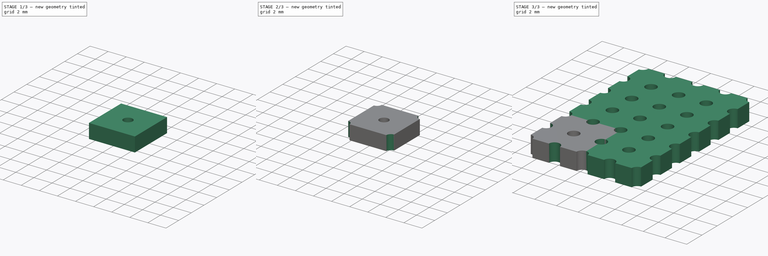
[diagram: build sequence overview — one tinted view per stage of 3, left to right]
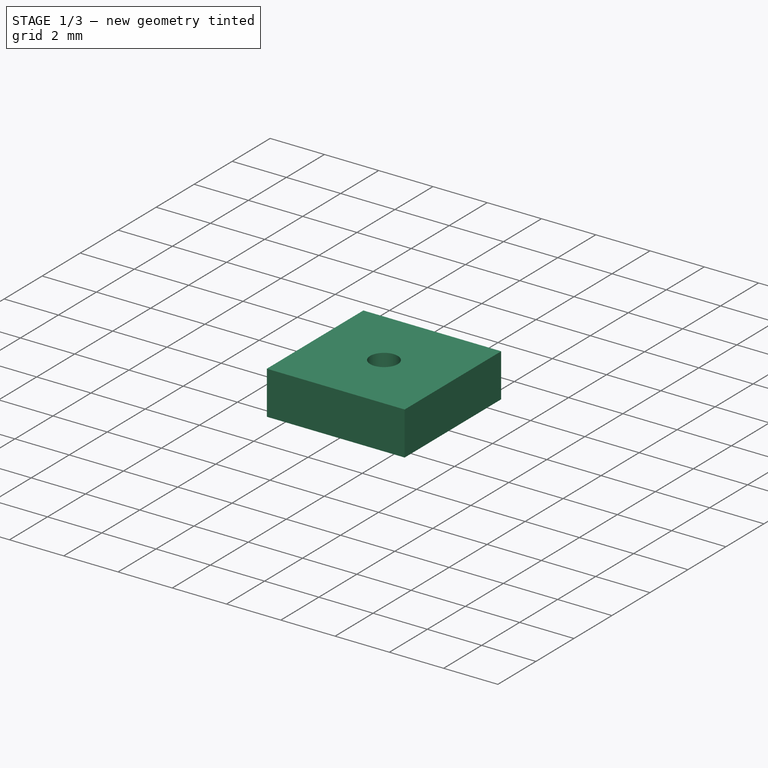
[diagram: stage 1 of 3 — iso view after this stage's code; geometry added in this stage tinted green]
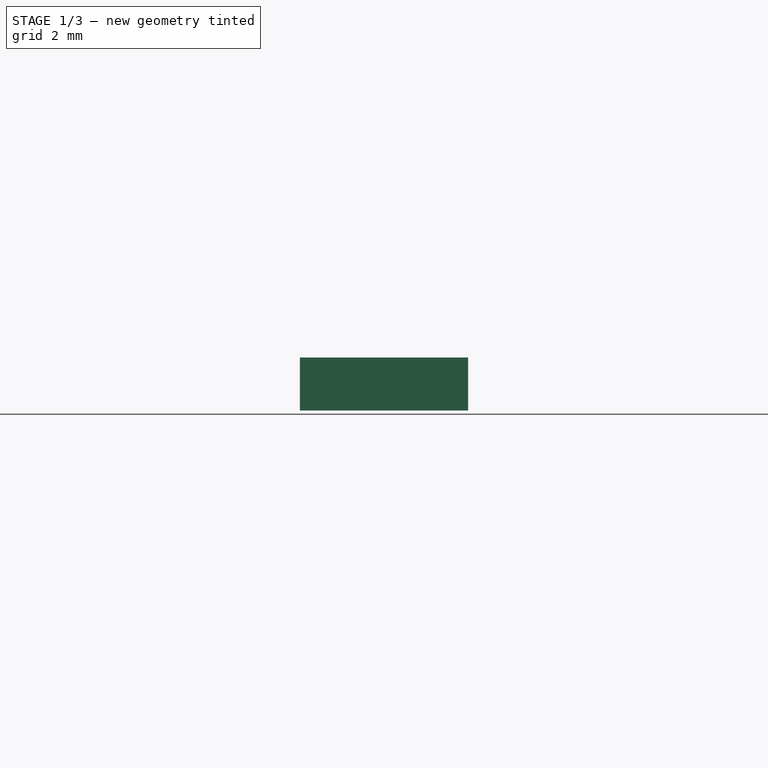
[diagram: stage 1 of 3 — front view after this stage's code; geometry added in this stage tinted green]
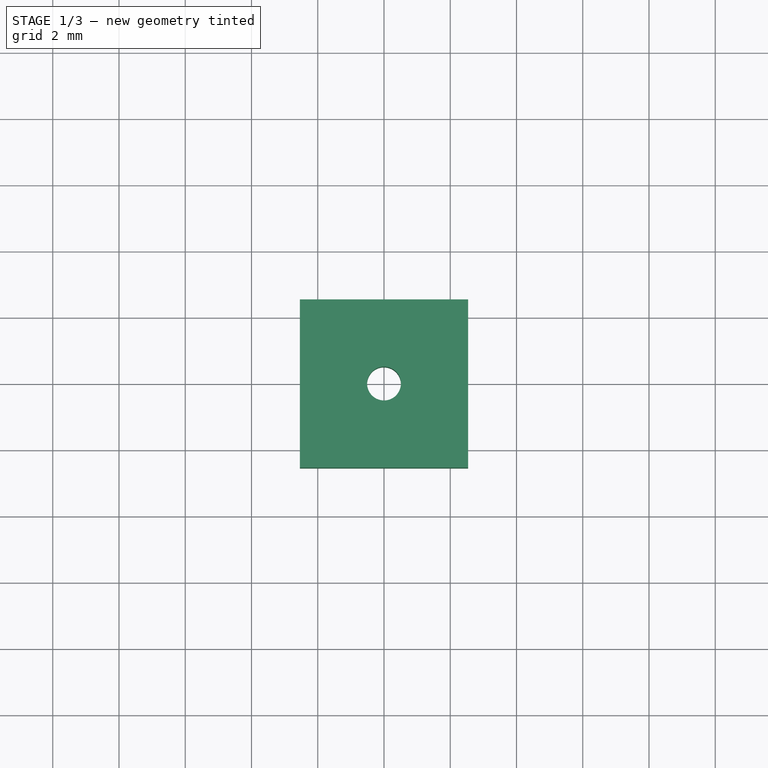
[diagram: stage 1 of 3 — top view after this stage's code; geometry added in this stage tinted green]
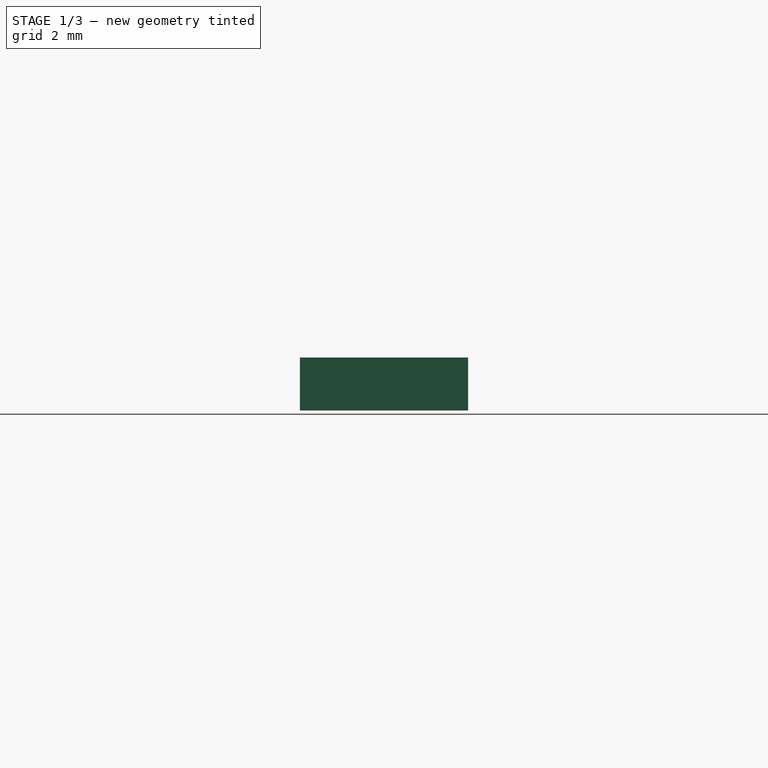
[diagram: stage 1 of 3 — right view after this stage's code; geometry added in this stage tinted green]
FCSTD DOCUMENT  (FreeCAD 0.19R16945 (Git))
Label: Vero Board Generator ReDesigned
License: All rights reserved
LicenseURL: http://en.wikipedia.org/wiki/All_rights_reserved
objects: Sketcher::SketchObject×4, PartDesign::Pocket×3, PartDesign::Pad×1, PartDesign::Body×1, Part::FeaturePython×1
note: 14 computed .brp shape members not serialized (recipe doc carries the construction recipe); baked Part::Feature solids carry a one-line shape summary decoded from their .brp

FEATURE [Sketcher::SketchObject] Sketch  label="SketchMain"
  MapMode = 5
  Support = -> [XY_Plane]
  expr: Constraints[10] = 2 * 2.54
  sketch-geometry (4):
    g0: LineSegment StartX=-2.54 StartY=2.54 StartZ=0 EndX=2.54 EndY=2.54 EndZ=0
    g1: LineSegment StartX=2.54 StartY=2.54 StartZ=0 EndX=2.54 EndY=-2.54 EndZ=0
    g2: LineSegment StartX=2.54 StartY=-2.54 StartZ=0 EndX=-2.54 EndY=-2.54 EndZ=0
    g3: LineSegment StartX=-2.54 StartY=-2.54 StartZ=0 EndX=-2.54 EndY=2.54 EndZ=0
  constraints (11):
    c: Coincident(g0,g1)
    c: Coincident(g1,g2)
    c: Coincident(g2,g3)
    c: Coincident(g3,g0)
    c: Horizontal(g0)
    c: Horizontal(g2)
    c: Vertical(g1)
    c: Vertical(g3)
    c: Symmetric(g0,g2,g-1)
    c: Equal(g0,g3)
    c: DistanceX(g0,g0) = 5.08
FEATURE [PartDesign::Pad] Pad  label="PadMain"
  Length = 1.6
  Length2 = 100
  Profile = -> Sketch
  Type = 0
FEATURE [Sketcher::SketchObject] Sketch001  label="SketchMiddle"
  MapMode = 5
  Support = -> [XY_Plane]
  expr: Constraints[10] = SketchMain.Constraints[10]
  sketch-geometry (5):
    g0: LineSegment [constr] StartX=-2.54 StartY=2.54 StartZ=0 EndX=2.54 EndY=2.54 EndZ=0
    g1: LineSegment [constr] StartX=2.54 StartY=2.54 StartZ=0 EndX=2.54 EndY=-2.54 EndZ=0
    g2: LineSegment [constr] StartX=2.54 StartY=-2.54 StartZ=0 EndX=-2.54 EndY=-2.54 EndZ=0
    g3: LineSegment [constr] StartX=-2.54 StartY=-2.54 StartZ=0 EndX=-2.54 EndY=2.54 EndZ=0
    g4: Circle CenterX=0 CenterY=0 CenterZ=0 NormalX=0 NormalY=0 NormalZ=1 AngleXU=0 Radius=0.51
  constraints (13):
    c: Coincident(g0,g1)
    c: Coincident(g1,g2)
    c: Coincident(g2,g3)
    c: Coincident(g3,g0)
    c: Horizontal(g0)
    c: Horizontal(g2)
    c: Vertical(g1)
    c: Vertical(g3)
    c: Symmetric(g0,g2,g-1)
    c: Equal(g0,g3)
    c: DistanceX(g0,g0) = 5.08
    c: Coincident(g4,g-1)
    c: Radius(g4) = 0.51
FEATURE [PartDesign::Pocket] Pocket  label="PocketMiddle"
  BaseFeature = -> Pad
  Length = 5
  Length2 = 100
  Midplane = true
  Profile = -> Sketch001
  Type = 1
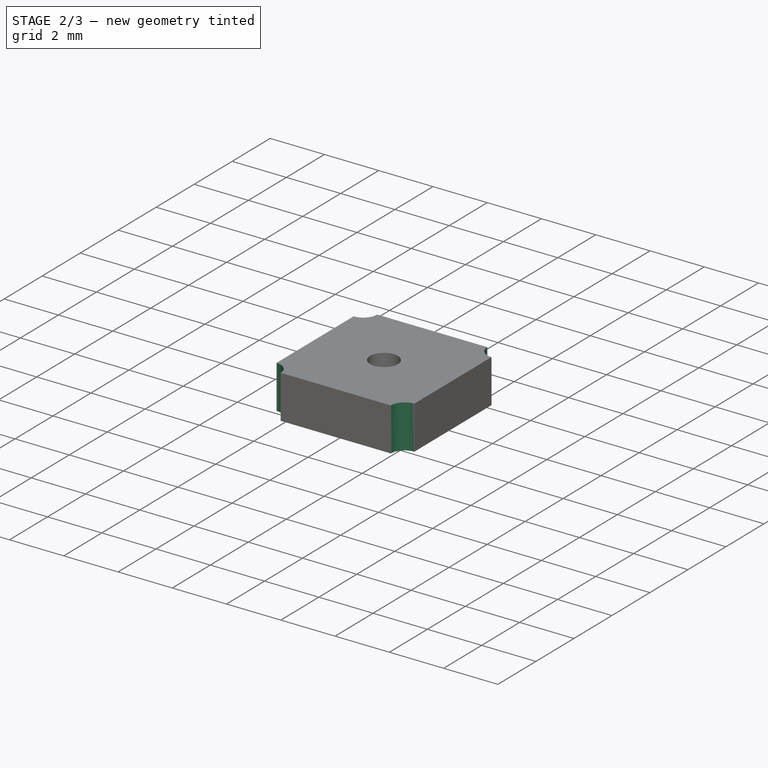
[diagram: stage 2 of 3 — iso view after this stage's code; geometry added in this stage tinted green]
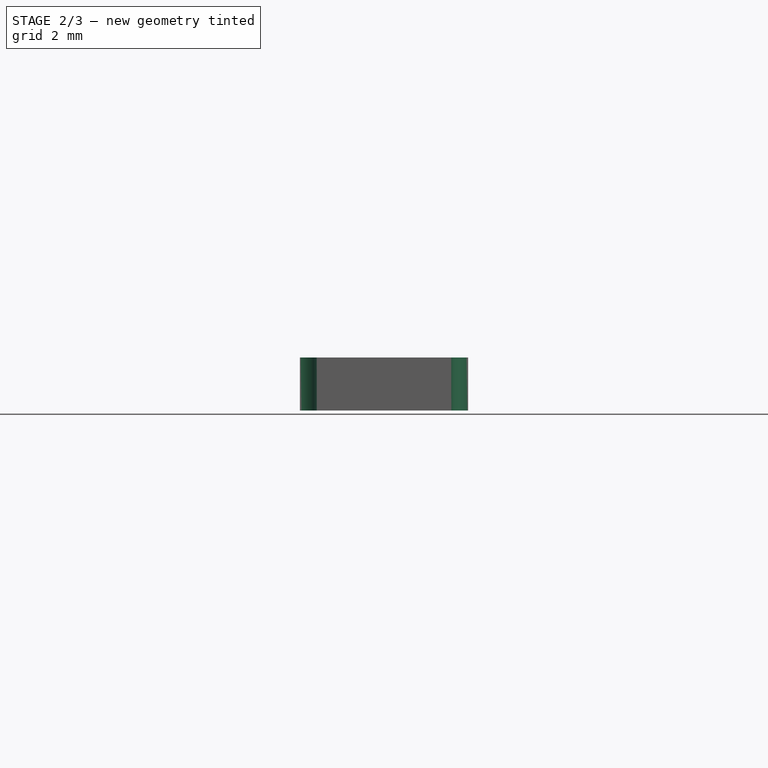
[diagram: stage 2 of 3 — front view after this stage's code; geometry added in this stage tinted green]
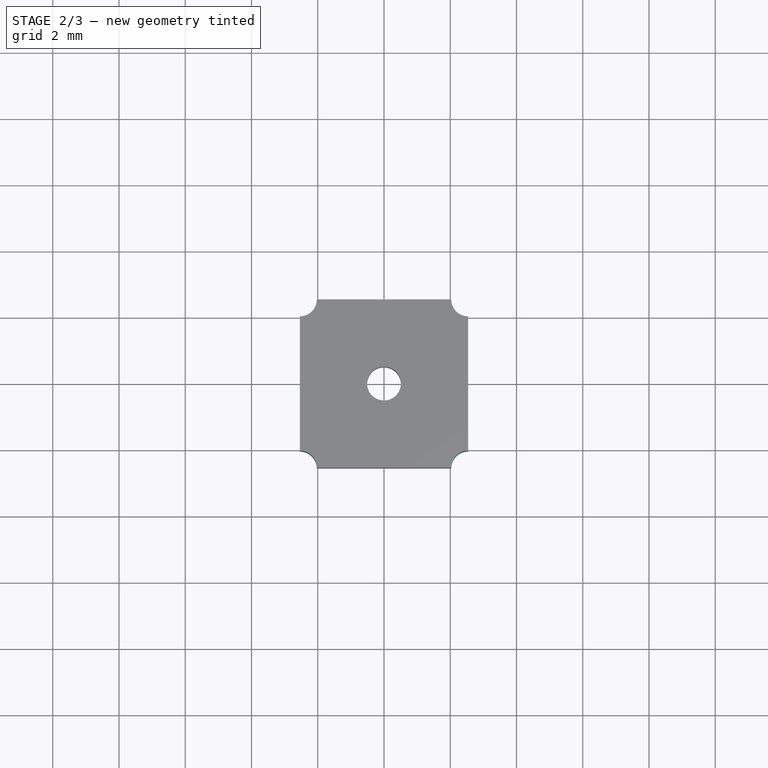
[diagram: stage 2 of 3 — top view after this stage's code; geometry added in this stage tinted green]
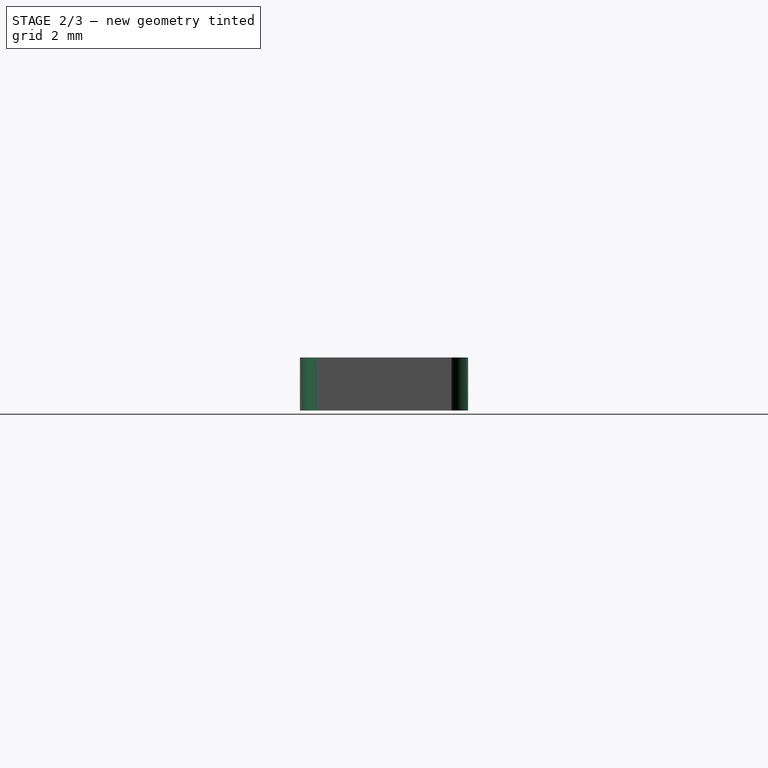
[diagram: stage 2 of 3 — right view after this stage's code; geometry added in this stage tinted green]
FEATURE [Sketcher::SketchObject] Sketch002  label="SketchCorners"
  MapMode = 5
  Support = -> [XY_Plane]
  sketch-geometry (16):
    g0: LineSegment [constr] StartX=-2.54 StartY=2.54 StartZ=0 EndX=2.54 EndY=2.54 EndZ=0
    g1: LineSegment [constr] StartX=2.54 StartY=2.54 StartZ=0 EndX=2.54 EndY=-2.54 EndZ=0
    g2: LineSegment [constr] StartX=2.54 StartY=-2.54 StartZ=0 EndX=-2.54 EndY=-2.54 EndZ=0
    g3: LineSegment [constr] StartX=-2.54 StartY=-2.54 StartZ=0 EndX=-2.54 EndY=2.54 EndZ=0
    g4: ArcOfCircle CenterX=-2.54 CenterY=2.54 CenterZ=0 NormalX=0 NormalY=0 NormalZ=1 AngleXU=0 Radius=0.51 StartAngle=4.71239 EndAngle=6.28319
    g5: LineSegment StartX=-2.54 StartY=2.03 StartZ=0 EndX=-2.54 EndY=2.54 EndZ=0
    g6: LineSegment StartX=-2.54 StartY=2.54 StartZ=0 EndX=-2.03 EndY=2.54 EndZ=0
    g7: ArcOfCircle CenterX=2.54 CenterY=2.54 CenterZ=0 NormalX=0 NormalY=0 NormalZ=1 AngleXU=0 Radius=0.51 StartAngle=3.14159 EndAngle=4.71239
    g8: ArcOfCircle CenterX=2.54 CenterY=-2.54 CenterZ=0 NormalX=0 NormalY=0 NormalZ=1 AngleXU=0 Radius=0.51 StartAngle=1.5708 EndAngle=3.14159
    g9: ArcOfCircle CenterX=-2.54 CenterY=-2.54 CenterZ=0 NormalX=0 NormalY=0 NormalZ=1 AngleXU=0 Radius=0.51 StartAngle=0 EndAngle=1.5708
    g10: LineSegment StartX=2.03 StartY=2.54 StartZ=0 EndX=2.54 EndY=2.54 EndZ=0
    g11: LineSegment StartX=2.54 StartY=2.54 StartZ=0 EndX=2.54 EndY=2.03 EndZ=0
    g12: LineSegment StartX=2.54 StartY=-2.03 StartZ=0 EndX=2.54 EndY=-2.54 EndZ=0
    g13: LineSegment StartX=2.54 StartY=-2.54 StartZ=0 EndX=2.03 EndY=-2.54 EndZ=0
    g14: LineSegment StartX=-2.03 StartY=-2.54 StartZ=0 EndX=-2.54 EndY=-2.54 EndZ=0
    g15: LineSegment StartX=-2.54 StartY=-2.54 StartZ=0 EndX=-2.54 EndY=-2.03 EndZ=0
  constraints (43):
    c: Coincident(g0,g1)
    c: Coincident(g1,g2)
    c: Coincident(g2,g3)
    c: Coincident(g3,g0)
    c: Horizontal(g0)
    c: Horizontal(g2)
    c: Vertical(g1)
    c: Vertical(g3)
    c: Symmetric(g0,g2,g-1)
    c: Equal(g0,g3)
    c: DistanceX(g0,g0) = 5.08
    c: Coincident(g4,g0)
    c: PointOnObject(g4,g0)
    c: PointOnObject(g4,g3)
    c: Coincident(g5,g4)
    c: Coincident(g5,g4)
    c: Coincident(g6,g4)
    c: Coincident(g6,g4)
    c: DistanceY(g5,g5) = 0.51
    c: Coincident(g7,g0)
    c: PointOnObject(g7,g0)
    c: PointOnObject(g7,g1)
    c: Coincident(g8,g1)
    c: PointOnObject(g8,g2)
    c: PointOnObject(g8,g1)
    c: Coincident(g9,g2)
    c: PointOnObject(g9,g2)
    c: PointOnObject(g9,g3)
    c: Equal(g4,g7)
    c: Equal(g7,g8)
    c: Equal(g8,g9)
    c: Coincident(g10,g7)
    c: Coincident(g10,g7)
    c: Coincident(g11,g7)
    c: Coincident(g11,g7)
    c: Coincident(g12,g8)
    c: Coincident(g12,g8)
    c: Coincident(g13,g8)
    c: Coincident(g13,g8)
    c: Coincident(g14,g9)
    c: Coincident(g14,g9)
    c: Coincident(g15,g9)
    c: Coincident(g15,g9)
FEATURE [PartDesign::Pocket] Pocket001  label="PocketCorners"
  BaseFeature = -> Pocket
  Length = 5
  Length2 = 100
  Midplane = true
  Profile = -> Sketch002
  Reversed = true
  Type = 1
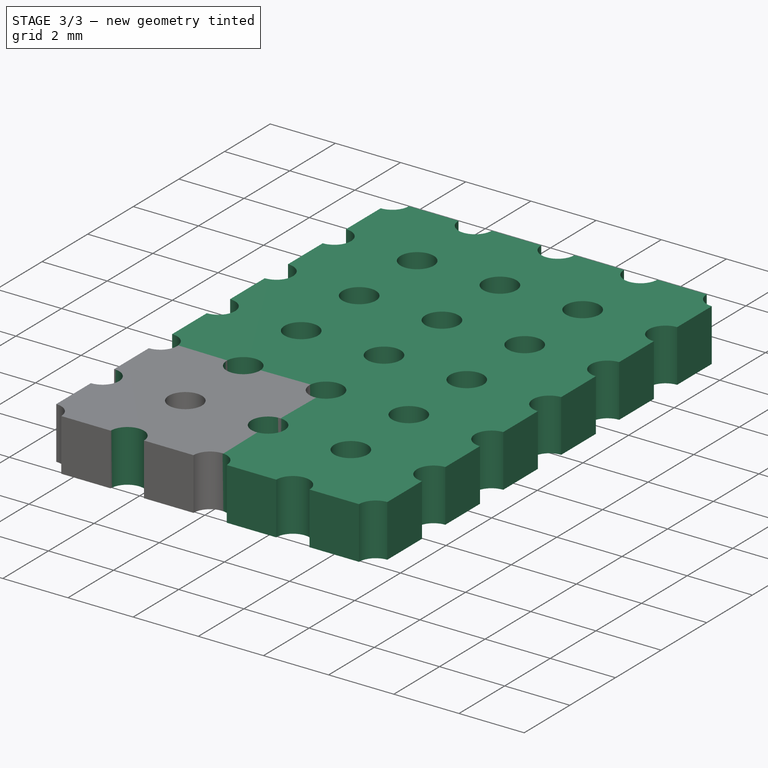
[diagram: stage 3 of 3 — iso view after this stage's code; geometry added in this stage tinted green]
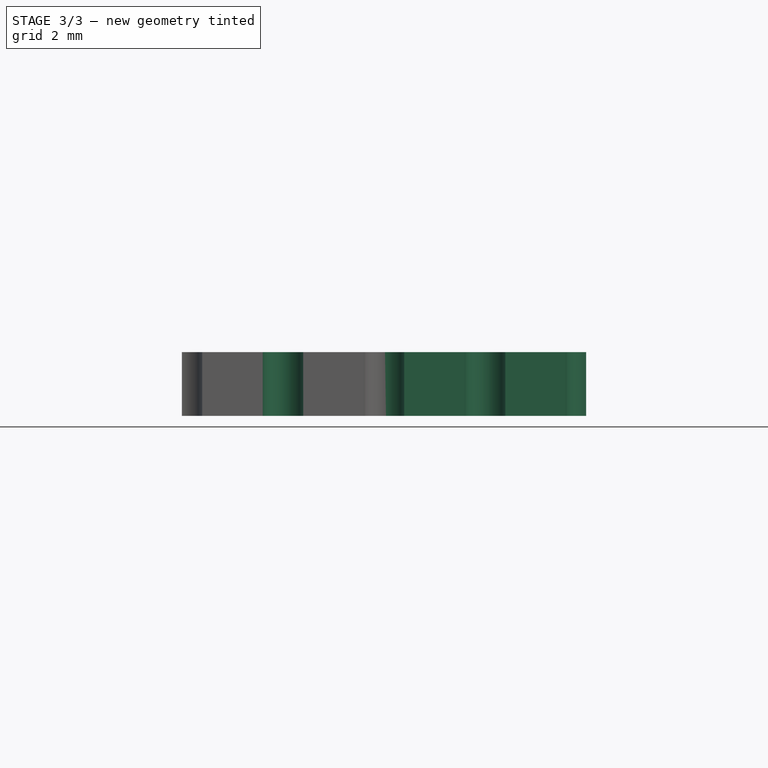
[diagram: stage 3 of 3 — front view after this stage's code; geometry added in this stage tinted green]
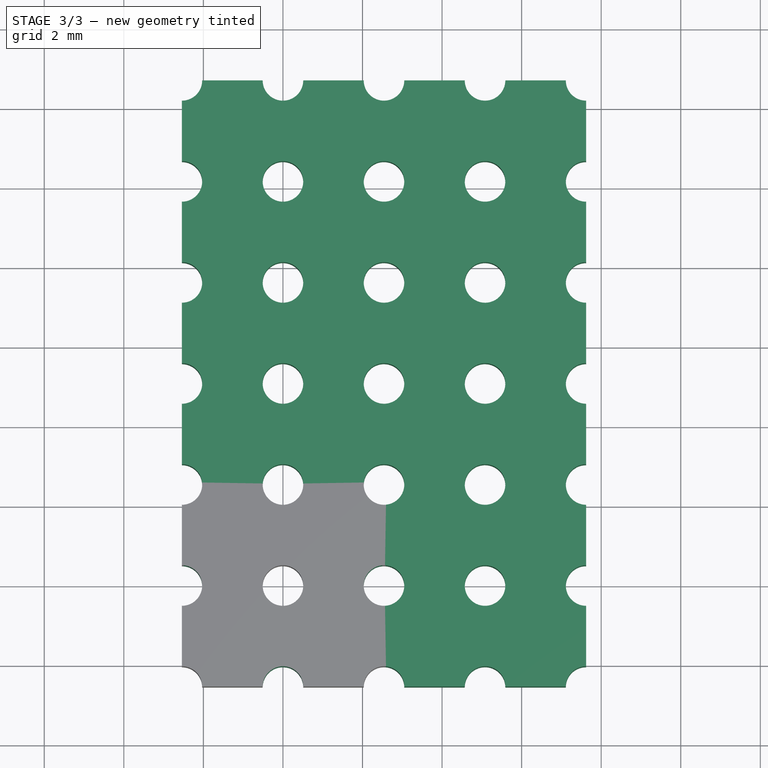
[diagram: stage 3 of 3 — top view after this stage's code; geometry added in this stage tinted green]
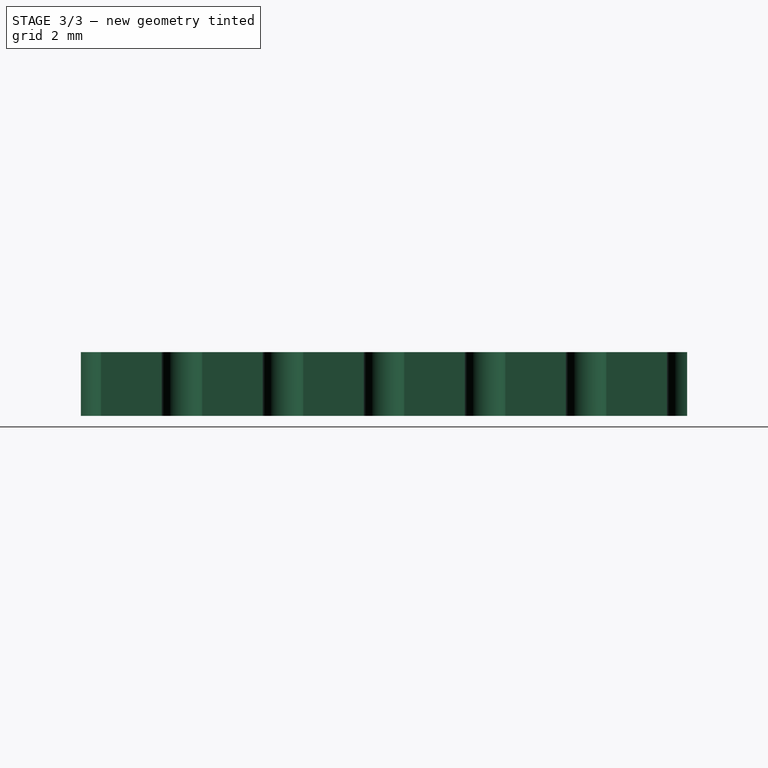
[diagram: stage 3 of 3 — right view after this stage's code; geometry added in this stage tinted green]
FEATURE [Sketcher::SketchObject] Sketch003  label="SketchSides"
  MapMode = 5
  Support = -> [XY_Plane]
  expr: Constraints[10] = Sketch.Constraints[10]
  sketch-geometry (16):
    g0: LineSegment [constr] StartX=-2.54 StartY=2.54 StartZ=0 EndX=2.54 EndY=2.54 EndZ=0
    g1: LineSegment [constr] StartX=2.54 StartY=2.54 StartZ=0 EndX=2.54 EndY=-2.54 EndZ=0
    g2: LineSegment [constr] StartX=2.54 StartY=-2.54 StartZ=0 EndX=-2.54 EndY=-2.54 EndZ=0
    g3: LineSegment [constr] StartX=-2.54 StartY=-2.54 StartZ=0 EndX=-2.54 EndY=2.54 EndZ=0
    g4: ArcOfCircle CenterX=0 CenterY=2.54 CenterZ=0 NormalX=0 NormalY=0 NormalZ=1 AngleXU=0 Radius=0.51 StartAngle=3.14159 EndAngle=6.28319
    g5: ArcOfCircle CenterX=2.54 CenterY=0 CenterZ=0 NormalX=0 NormalY=0 NormalZ=1 AngleXU=0 Radius=0.51 StartAngle=1.5708 EndAngle=4.71239
    g6: ArcOfCircle CenterX=0 CenterY=-2.54 CenterZ=0 NormalX=0 NormalY=0 NormalZ=1 AngleXU=0 Radius=0.51 StartAngle=1e-16 EndAngle=3.14159
    g7: ArcOfCircle CenterX=-2.54 CenterY=0 CenterZ=0 NormalX=0 NormalY=0 NormalZ=1 AngleXU=0 Radius=0.51 StartAngle=4.71239 EndAngle=7.85398
    g8: LineSegment StartX=-0.51 StartY=2.54 StartZ=0 EndX=0 EndY=2.54 EndZ=0
    g9: LineSegment StartX=0 StartY=2.54 StartZ=0 EndX=0.51 EndY=2.54 EndZ=0
    g10: LineSegment StartX=2.54 StartY=0.51 StartZ=0 EndX=2.54 EndY=0 EndZ=0
    g11: LineSegment StartX=2.54 StartY=0 StartZ=0 EndX=2.54 EndY=-0.51 EndZ=0
    g12: LineSegment StartX=0.51 StartY=-2.54 StartZ=0 EndX=0 EndY=-2.54 EndZ=0
    g13: LineSegment StartX=0 StartY=-2.54 StartZ=0 EndX=-0.51 EndY=-2.54 EndZ=0
    g14: LineSegment StartX=-2.54 StartY=-0.51 StartZ=0 EndX=-2.54 EndY=0 EndZ=0
    g15: LineSegment StartX=-2.54 StartY=0 StartZ=0 EndX=-2.54 EndY=0.51 EndZ=0
  constraints (47):
    c: Coincident(g0,g1)
    c: Coincident(g1,g2)
    c: Coincident(g2,g3)
    c: Coincident(g3,g0)
    c: Horizontal(g0)
    c: Horizontal(g2)
    c: Vertical(g1)
    c: Vertical(g3)
    c: Symmetric(g0,g2,g-1)
    c: Equal(g0,g3)
    c: DistanceX(g0,g0) = 5.08
    c: PointOnObject(g4,g-2)
    c: PointOnObject(g4,g0)
    c: PointOnObject(g4,g0)
    c: PointOnObject(g4,g0)
    c: DistanceX(g4,g4) = 0.51
    c: PointOnObject(g5,g1)
    c: PointOnObject(g5,g1)
    c: PointOnObject(g5,g1)
    c: PointOnObject(g6,g2)
    c: PointOnObject(g6,g2)
    c: PointOnObject(g7,g3)
    c: PointOnObject(g7,g3)
    c: PointOnObject(g7,g3)
    c: PointOnObject(g7,g-1)
    c: PointOnObject(g6,g2)
    c: PointOnObject(g6,g-2)
    c: PointOnObject(g5,g-1)
    c: Equal(g4,g7)
    c: Equal(g7,g6)
    c: Equal(g6,g5)
    c: Coincident(g8,g4)
    c: Coincident(g8,g4)
    c: Coincident(g9,g4)
    c: Coincident(g9,g4)
    c: Coincident(g10,g5)
    c: Coincident(g10,g5)
    c: Coincident(g11,g5)
    c: Coincident(g11,g5)
    c: Coincident(g12,g6)
    c: Coincident(g12,g6)
    c: Coincident(g13,g6)
    c: Coincident(g13,g6)
    c: Coincident(g14,g7)
    c: Coincident(g14,g7)
    c: Coincident(g15,g7)
    c: Coincident(g15,g7)
FEATURE [PartDesign::Pocket] Pocket002  label="PocketSides"
  BaseFeature = -> Pocket001
  Length = 5
  Length2 = 100
  Midplane = true
  Profile = -> Sketch003
  Type = 1
FEATURE [PartDesign::Body] Body
  Group = -> [Sketch,Pad,Sketch001,Pocket,Sketch002,Pocket001,Sketch003,Pocket002]
  Origin = -> Origin
  Tip = -> Pocket002
FEATURE [Part::FeaturePython] Array  # Draft array (typed FeaturePython)
  Angle = 360
  ArrayType = 0
  Axis = (0,0,1)
  Base = -> Body
  Center = (0,0,0)
  Fuse = true
  IntervalAxis = (0,0,0)
  IntervalX = (5.08,0,0)
  IntervalY = (0,5.08,0)
  IntervalZ = (0,0,1)
  NumberPolar = 1
  NumberX = 2
  NumberY = 3
  NumberZ = 1
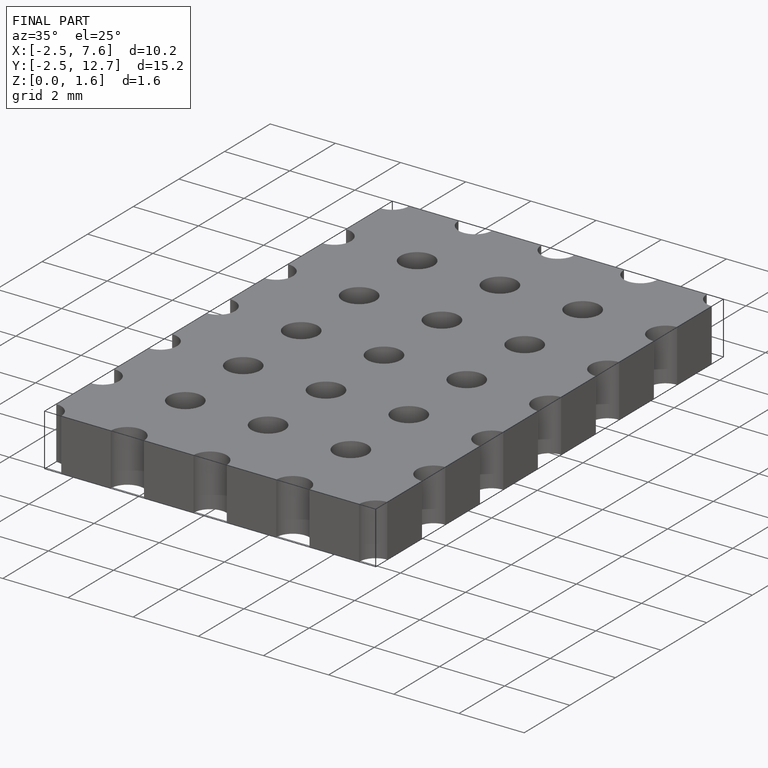
[diagram: finished part — iso view with bounding-box wireframe]
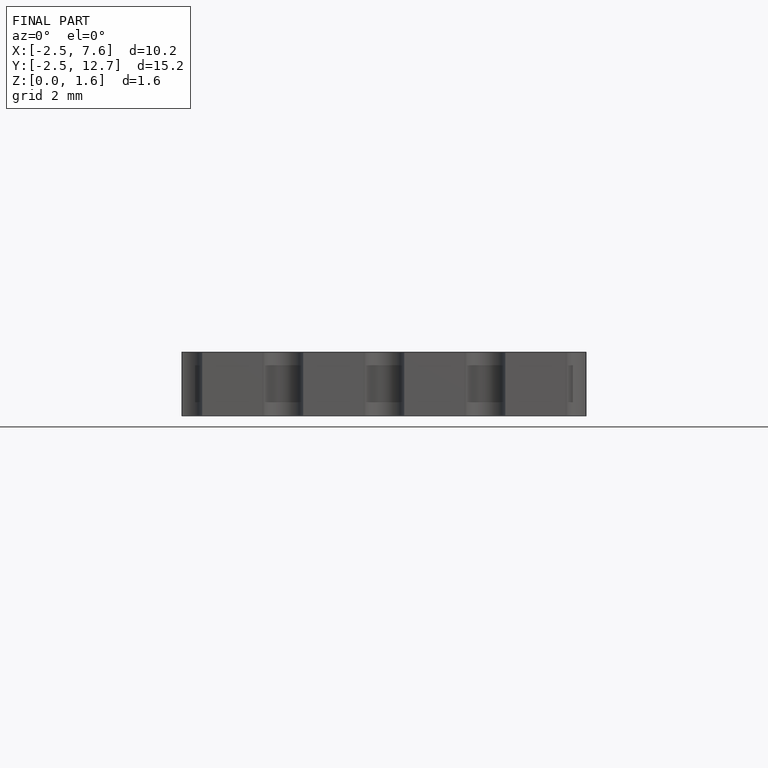
[diagram: finished part — front view with bounding-box wireframe]
